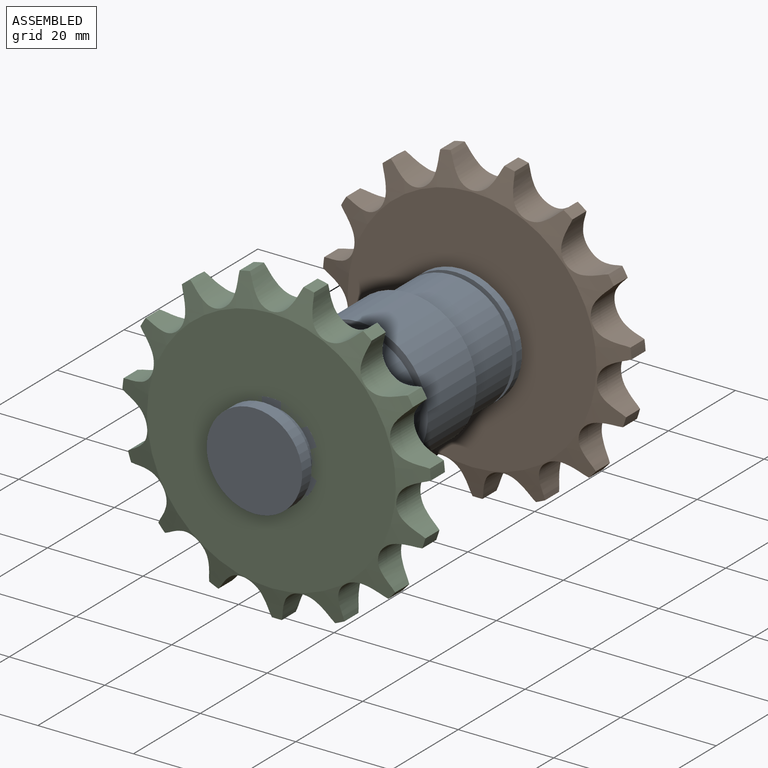
[diagram: assembled view]
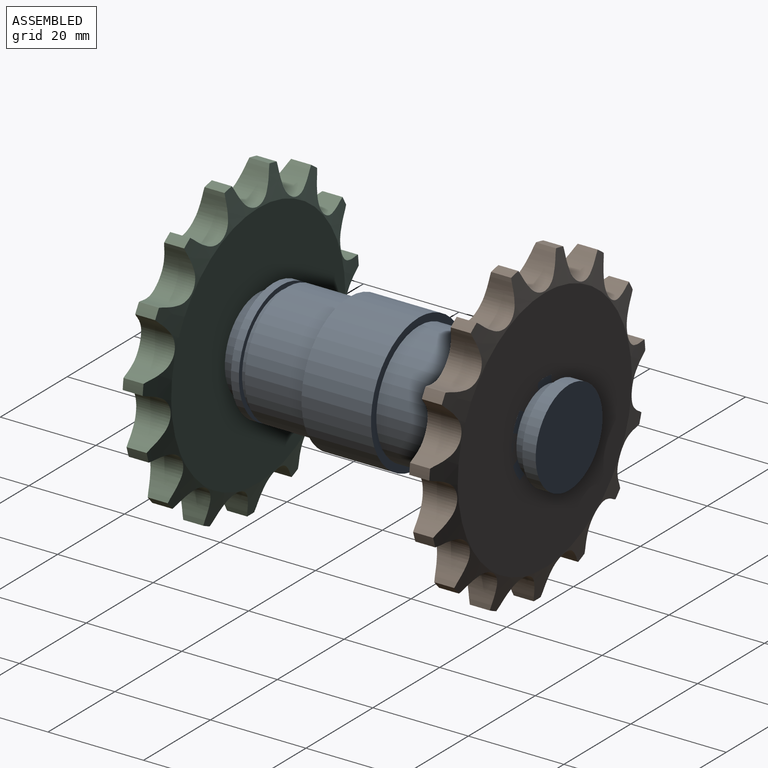
[diagram: assembled view, second angle]
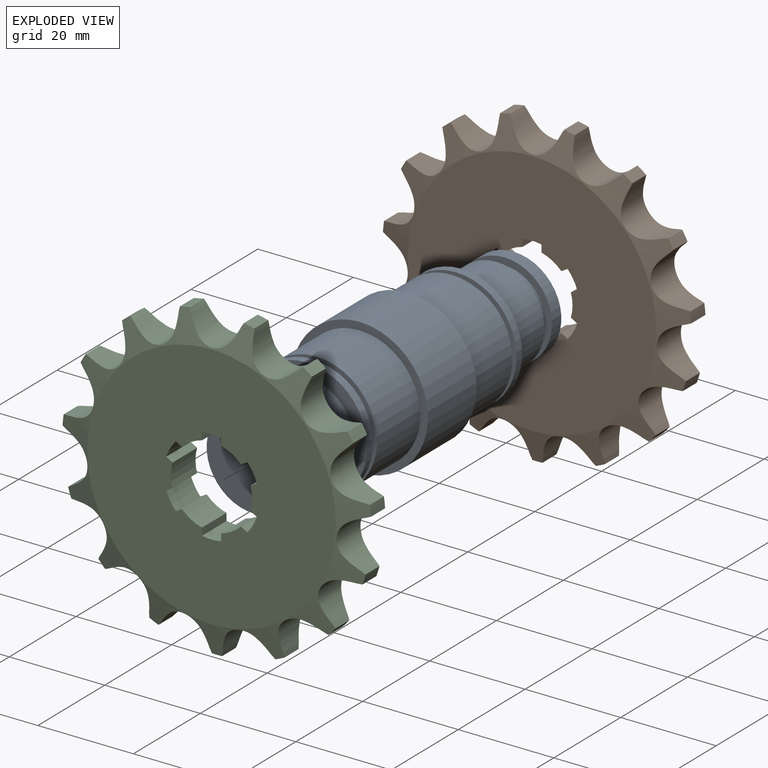
[diagram: exploded view]
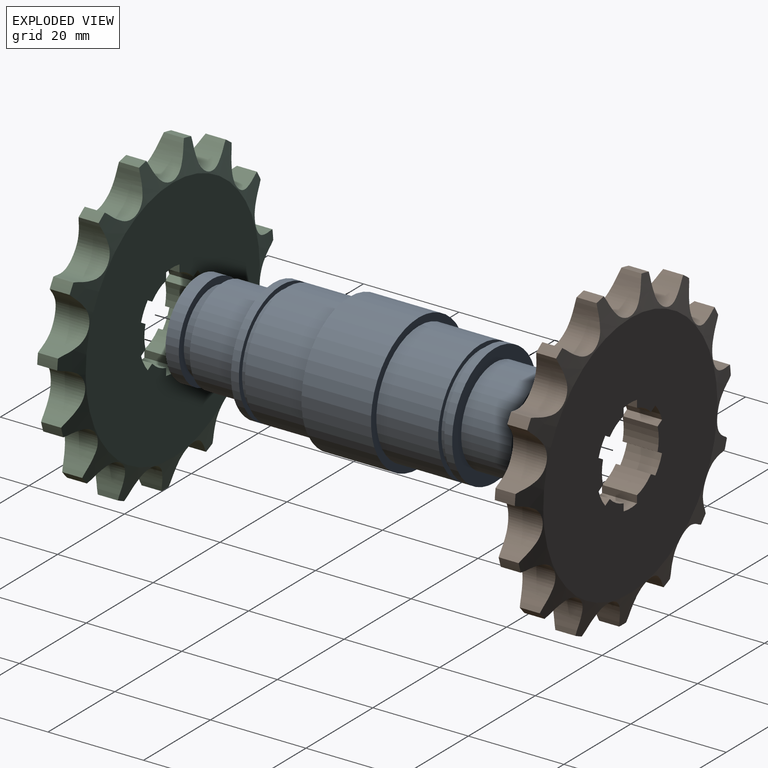
[diagram: exploded view, second angle]
ASSEMBLY  parts=3 mates=2
PART A: 27 faces, bbox 28.6x77.5x28.6 mm
  f0: plane 25.4x25.4mm, normal (0,-1,0), area 192.5mm2, adj f1,f26
  f1: cylinder r=10mm len=20mm, axis (0,1,0), area 660.7mm2, adj f0,f2
  f2: plane 20x20mm, normal (0,-1,0), area 87.2mm2, adj f1,f3
  f3: cylinder r=8.5mm len=17mm, axis (0,1,0), area 122.1mm2, adj f2,f4
  f4: plane 20x20mm, normal (0,1,0), area 87.2mm2, adj f3,f5
  f5: cylinder r=10mm len=20mm, axis (0,1,0), area 175.6mm2, adj f4,f6
  f6: plane 20x20mm, normal (0,-1,0), area 314.2mm2, adj f5
  f7: plane 20x20mm, normal (0,1,0), area 314.2mm2, adj f8
  f8: cylinder r=10mm len=20mm, axis (0,1,0), area 175.6mm2, adj f7,f9
  f9: plane 20x20mm, normal (0,-1,0), area 87.2mm2, adj f8,f10
  f10: cylinder r=8.5mm len=17mm, axis (0,1,0), area 122.1mm2, adj f9,f11
  f11: plane 20x20mm, normal (0,1,0), area 87.2mm2, adj f10,f12
  f12: cylinder r=10mm len=20mm, axis (0,1,0), area 660.7mm2, adj f11,f13
  f13: plane 25.4x25.4mm, normal (0,1,0), area 192.5mm2, adj f12,f14
  f14: cylinder r=12.7mm len=25.4mm, axis (0,1,0), area 131.7mm2, adj f13,f15
  f15: plane 25.4x25.4mm, normal (0,-1,0), area 74.1mm2, adj f14,f16
  f16: cylinder r=11.73mm len=23.47mm, axis (0,1,0), area 93.6mm2, adj f15,f17
  f17: plane 25.4x25.4mm, normal (0,1,0), area 74.1mm2, adj f16,f18
  f18: cylinder r=12.7mm len=25.4mm, axis (0,1,0), area 1033.7mm2, adj f17,f19
  f19: plane 28.58x28.58mm, normal (0,1,0), area 134.6mm2, adj f18,f20
  f20: cylinder r=14.29mm len=28.58mm, axis (0,1,0), area 1306.9mm2, adj f19,f21
  f21: plane 28.58x28.58mm, normal (0,-1,0), area 134.6mm2, adj f20,f22
  f22: cylinder r=12.7mm len=25.4mm, axis (0,1,0), area 1033.7mm2, adj f21,f23
  f23: plane 25.4x25.4mm, normal (0,-1,0), area 74.1mm2, adj f22,f24
  f24: cylinder r=11.73mm len=23.47mm, axis (0,1,0), area 93.6mm2, adj f23,f25
  f25: plane 25.4x25.4mm, normal (0,1,0), area 74.1mm2, adj f24,f26
  f26: cylinder r=12.7mm len=25.4mm, axis (0,1,0), area 131.7mm2, adj f0,f25
PART B: 148 faces, bbox 64.8x7.3x64.8 mm
  f0: plane 52.07x52.07mm, normal (0,-1,0), area 1866.2mm2, adj f1,f2,f3,f4,f5,f6,f23,f130
  f1: cylinder r=8.5mm len=7.34mm, axis (0,1,0), area 35.7mm2, adj f0,f7,f131,f145
  f2: cylinder r=8.5mm len=7.34mm, axis (0,1,0), area 35.7mm2, adj f0,f7,f144,f147
  f3: cylinder r=8.5mm len=7.34mm, axis (0,1,0), area 35.7mm2, adj f0,f7,f141,f142
  f4: cylinder r=8.5mm len=7.34mm, axis (0,1,0), area 35.7mm2, adj f0,f7,f138,f139
  f5: cylinder r=8.5mm len=7.34mm, axis (0,1,0), area 35.7mm2, adj f0,f7,f135,f136
  f6: cylinder r=8.5mm len=7.34mm, axis (0,1,0), area 35.7mm2, adj f0,f7,f130,f133
  f7: plane 52.07x52.07mm, normal (0,1,0), area 1866.2mm2, adj f1,f2,f3,f4,f5,f6,f24,f130
  f8: cylinder r=32.38mm len=4.19mm, axis (0,1,0), area 9mm2, adj f23,f24,f122,f129
  f9: cylinder r=32.38mm len=4.19mm, axis (0,1,0), area 8.9mm2, adj f23,f24,f115,f116
  f10: cylinder r=32.38mm len=4.19mm, axis (0,1,0), area 8.8mm2, adj f23,f24,f108,f109
  f11: cylinder r=32.38mm len=4.19mm, axis (0,1,0), area 8.8mm2, adj f23,f24,f101,f102
  f12: cylinder r=32.38mm len=4.19mm, axis (0,1,0), area 8.8mm2, adj f23,f24,f94,f95
  f13: cylinder r=32.38mm len=4.19mm, axis (0,1,0), area 8.9mm2, adj f23,f24,f87,f88
  f14: cylinder r=32.38mm len=4.19mm, axis (0,1,0), area 9mm2, adj f23,f24,f80,f81
  f15: cylinder r=32.38mm len=4.19mm, axis (0,1,0), area 9.1mm2, adj f23,f24,f73,f74
  f16: cylinder r=32.38mm len=4.19mm, axis (0,1,0), area 9.2mm2, adj f23,f24,f66,f67
  f17: cylinder r=32.38mm len=4.19mm, axis (0,1,0), area 9.3mm2, adj f23,f24,f59,f60
  f18: cylinder r=32.38mm len=4.19mm, axis (0,1,0), area 9.3mm2, adj f23,f24,f52,f53
  f19: cylinder r=32.38mm len=4.19mm, axis (0,1,0), area 9.3mm2, adj f23,f24,f45,f46
  f20: cylinder r=32.38mm len=4.19mm, axis (0,1,0), area 9.3mm2, adj f23,f24,f38,f39
  f21: cylinder r=32.38mm len=4.19mm, axis (0,1,0), area 9.2mm2, adj f23,f24,f31,f32
  f22: cylinder r=32.38mm len=4.19mm, axis (0,1,0), area 9.1mm2, adj f23,f24,f25,f123
  f23: cone r=32.38mm half-angle=76.1deg, axis (0,1,0), area 449.7mm2, adj f0,f8,f9,f10,f11,f12,f13,f14
  f24: cone r=26.04mm half-angle=76.1deg, axis (0,-1,0), area 449.7mm2, adj f7,f8,f9,f10,f11,f12,f13,f14
  f25: cylinder r=7.1mm len=4.64mm, axis (0,-1,0), area 4.2mm2, adj f22,f23,f24,f26
  f26: plane 5.09x0.91mm, normal (0.3,0,0.95), area 4.6mm2, adj f23,f24,f25,f27
  f27: cylinder r=11.12mm len=6.34mm, axis (0,-1,0), area 15.8mm2, adj f23,f24,f26,f28
  f28: cylinder r=4.31mm len=7.23mm, axis (0,-1,0), area 53.1mm2, adj f23,f24,f27,f29
  f29: cylinder r=11.12mm len=6.33mm, axis (0,-1,0), area 15.8mm2, adj f23,f24,f28,f30
  f30: plane 5.08x0.88mm, normal (-0.92,0,-0.4), area 4.6mm2, adj f23,f24,f29,f31
  f31: cylinder r=7.1mm len=4.62mm, axis (0,-1,0), area 4mm2, adj f21,f23,f24,f30
  f32: cylinder r=7.1mm len=4.62mm, axis (0,-1,0), area 4mm2, adj f21,f23,f24,f33
  f33: plane 5.08x0.72mm, normal (0.66,0,0.75), area 4.6mm2, adj f23,f24,f32,f34
  f34: cylinder r=11.12mm len=6.32mm, axis (0,-1,0), area 15.8mm2, adj f23,f24,f33,f35
  f35: cylinder r=4.31mm len=7.21mm, axis (0,-1,0), area 53mm2, adj f23,f24,f34,f36
  f36: cylinder r=11.12mm len=6.32mm, axis (0,-1,0), area 15.8mm2, adj f23,f24,f35,f37
  f37: plane 5.07x0.95mm, normal (-1,0,0.01), area 4.6mm2, adj f23,f24,f36,f38
  f38: cylinder r=7.1mm len=4.61mm, axis (0,-1,0), area 3.9mm2, adj f20,f23,f24,f37
  f39: cylinder r=7.1mm len=4.61mm, axis (0,-1,0), area 3.9mm2, adj f20,f23,f24,f40
  f40: plane 5.06x0.87mm, normal (0.91,0,0.42), area 4.6mm2, adj f23,f24,f39,f41
  f41: cylinder r=11.12mm len=6.31mm, axis (0,-1,0), area 15.7mm2, adj f23,f24,f40,f42
  f42: cylinder r=4.31mm len=7.2mm, axis (0,-1,0), area 52.9mm2, adj f23,f24,f41,f43
  f43: cylinder r=11.12mm len=6.31mm, axis (0,-1,0), area 15.7mm2, adj f23,f24,f42,f44
  f44: plane 5.06x0.87mm, normal (-0.91,0,0.42), area 4.6mm2, adj f23,f24,f43,f45
  f45: cylinder r=7.1mm len=4.6mm, axis (0,-1,0), area 3.8mm2, adj f19,f23,f24,f44
  f46: cylinder r=7.1mm len=4.6mm, axis (0,-1,0), area 3.8mm2, adj f19,f23,f24,f47
  f47: plane 5.06x0.95mm, normal (1,0,0.01), area 4.6mm2, adj f23,f24,f46,f48
  f48: cylinder r=11.12mm len=6.31mm, axis (0,-1,0), area 15.7mm2, adj f23,f24,f47,f49
  f49: cylinder r=4.31mm len=7.2mm, axis (0,-1,0), area 52.9mm2, adj f23,f24,f48,f50
  f50: cylinder r=11.12mm len=6.31mm, axis (0,-1,0), area 15.7mm2, adj f23,f24,f49,f51
  f51: plane 5.06x0.72mm, normal (-0.66,0,0.75), area 4.6mm2, adj f23,f24,f50,f52
  f52: cylinder r=7.1mm len=4.6mm, axis (0,-1,0), area 3.8mm2, adj f18,f23,f24,f51
  f53: cylinder r=7.1mm len=4.6mm, axis (0,-1,0), area 3.8mm2, adj f18,f23,f24,f54
  f54: plane 5.06x0.88mm, normal (0.92,0,-0.4), area 4.6mm2, adj f23,f24,f53,f55
  f55: cylinder r=11.12mm len=6.31mm, axis (0,-1,0), area 15.7mm2, adj f23,f24,f54,f56
  f56: cylinder r=4.31mm len=7.2mm, axis (0,-1,0), area 52.9mm2, adj f23,f24,f55,f57
  f57: cylinder r=11.12mm len=6.31mm, axis (0,-1,0), area 15.7mm2, adj f23,f24,f56,f58
  f58: plane 5.07x0.91mm, normal (-0.3,0,0.95), area 4.6mm2, adj f23,f24,f57,f59
  f59: cylinder r=7.1mm len=4.61mm, axis (0,-1,0), area 3.9mm2, adj f17,f23,f24,f58
  f60: cylinder r=7.1mm len=4.61mm, axis (0,-1,0), area 3.9mm2, adj f17,f23,f24,f61
  f61: plane 5.07x0.7mm, normal (0.68,0,-0.73), area 4.6mm2, adj f23,f24,f60,f62
  f62: cylinder r=11.12mm len=6.32mm, axis (0,-1,0), area 15.8mm2, adj f23,f24,f61,f63
  f63: cylinder r=4.31mm len=7.22mm, axis (0,-1,0), area 53mm2, adj f23,f24,f62,f64
  f64: cylinder r=11.12mm len=6.33mm, axis (0,-1,0), area 15.8mm2, adj f23,f24,f63,f65
  f65: plane 5.08x0.95mm, normal (0.12,0,0.99), area 4.6mm2, adj f23,f24,f64,f66
  f66: cylinder r=7.1mm len=4.62mm, axis (0,-1,0), area 4.1mm2, adj f16,f23,f24,f65
  f67: cylinder r=7.1mm len=4.63mm, axis (0,-1,0), area 4.1mm2, adj f16,f23,f24,f68
  f68: plane 5.08x0.9mm, normal (0.32,0,-0.95), area 4.6mm2, adj f23,f24,f67,f69
  f69: cylinder r=11.12mm len=6.33mm, axis (0,-1,0), area 15.8mm2, adj f23,f24,f68,f70
  f70: cylinder r=4.31mm len=7.23mm, axis (0,-1,0), area 53.2mm2, adj f23,f24,f69,f71
  f71: cylinder r=11.12mm len=6.35mm, axis (0,-1,0), area 15.8mm2, adj f23,f24,f70,f72
  f72: plane 5.1x0.82mm, normal (0.51,0,0.86), area 4.6mm2, adj f23,f24,f71,f73
  f73: cylinder r=7.1mm len=4.64mm, axis (0,-1,0), area 4.2mm2, adj f15,f23,f24,f72
  f74: cylinder r=7.1mm len=4.64mm, axis (0,-1,0), area 4.3mm2, adj f15,f23,f24,f75
  f75: plane 5.1x0.95mm, normal (-0.09,0,-1), area 4.6mm2, adj f23,f24,f74,f76
  f76: cylinder r=11.12mm len=6.35mm, axis (0,-1,0), area 15.9mm2, adj f23,f24,f75,f77
  f77: cylinder r=4.31mm len=7.25mm, axis (0,-1,0), area 53.3mm2, adj f23,f24,f76,f78
  f78: cylinder r=11.12mm len=6.36mm, axis (0,-1,0), area 15.9mm2, adj f23,f24,f77,f79
  f79: plane 5.12x0.78mm, normal (0.82,0,0.58), area 4.6mm2, adj f23,f24,f78,f80
  f80: cylinder r=7.1mm len=4.66mm, axis (0,-1,0), area 4.4mm2, adj f14,f23,f24,f79
  f81: cylinder r=7.1mm len=4.66mm, axis (0,-1,0), area 4.5mm2, adj f14,f23,f24,f82
  f82: plane 5.12x0.83mm, normal (-0.49,0,-0.87), area 4.6mm2, adj f23,f24,f81,f83
  f83: cylinder r=11.12mm len=6.37mm, axis (0,-1,0), area 15.9mm2, adj f23,f24,f82,f84
  f84: cylinder r=4.31mm len=7.27mm, axis (0,-1,0), area 53.5mm2, adj f23,f24,f83,f85
  f85: cylinder r=11.12mm len=6.38mm, axis (0,-1,0), area 15.9mm2, adj f23,f24,f84,f86
  f86: plane 5.13x0.93mm, normal (0.98,0,0.2), area 4.7mm2, adj f23,f24,f85,f87
  f87: cylinder r=7.1mm len=4.68mm, axis (0,-1,0), area 4.6mm2, adj f13,f23,f24,f86
  f88: cylinder r=7.1mm len=4.68mm, axis (0,-1,0), area 4.6mm2, adj f13,f23,f24,f89
  f89: plane 5.14x0.76mm, normal (-0.8,0,-0.6), area 4.7mm2, adj f23,f24,f88,f90
  f90: cylinder r=11.12mm len=6.39mm, axis (0,-1,0), area 16mm2, adj f23,f24,f89,f91
  f91: cylinder r=4.31mm len=7.28mm, axis (0,-1,0), area 53.6mm2, adj f23,f24,f90,f92
  f92: cylinder r=11.12mm len=6.39mm, axis (0,-1,0), area 16mm2, adj f23,f24,f91,f93
  f93: plane 5.14x0.93mm, normal (0.98,0,-0.22), area 4.7mm2, adj f23,f24,f92,f94
  f94: cylinder r=7.1mm len=4.69mm, axis (0,-1,0), area 4.7mm2, adj f12,f23,f24,f93
  f95: cylinder r=7.1mm len=4.69mm, axis (0,-1,0), area 4.7mm2, adj f12,f23,f24,f96
  f96: plane 5.15x0.93mm, normal (-0.98,0,-0.22), area 4.7mm2, adj f23,f24,f95,f97
  f97: cylinder r=11.12mm len=6.4mm, axis (0,-1,0), area 16mm2, adj f23,f24,f96,f98
  f98: cylinder r=4.31mm len=7.29mm, axis (0,-1,0), area 53.6mm2, adj f23,f24,f97,f99
  f99: cylinder r=11.12mm len=6.4mm, axis (0,-1,0), area 16mm2, adj f23,f24,f98,f100
  f100: plane 5.15x0.76mm, normal (0.8,0,-0.6), area 4.7mm2, adj f23,f24,f99,f101
  f101: cylinder r=7.1mm len=4.69mm, axis (0,-1,0), area 4.8mm2, adj f11,f23,f24,f100
  f102: cylinder r=7.1mm len=4.69mm, axis (0,-1,0), area 4.8mm2, adj f11,f23,f24,f103
  f103: plane 5.15x0.93mm, normal (-0.98,0,0.2), area 4.7mm2, adj f23,f24,f102,f104
  f104: cylinder r=11.12mm len=6.4mm, axis (0,-1,0), area 16mm2, adj f23,f24,f103,f105
  f105: cylinder r=4.31mm len=7.29mm, axis (0,-1,0), area 53.6mm2, adj f23,f24,f104,f106
  f106: cylinder r=11.12mm len=6.4mm, axis (0,-1,0), area 16mm2, adj f23,f24,f105,f107
  f107: plane 5.15x0.83mm, normal (0.49,0,-0.87), area 4.7mm2, adj f23,f24,f106,f108
  f108: cylinder r=7.1mm len=4.69mm, axis (0,-1,0), area 4.7mm2, adj f10,f23,f24,f107
  f109: cylinder r=7.1mm len=4.69mm, axis (0,-1,0), area 4.7mm2, adj f10,f23,f24,f110
  f110: plane 5.14x0.78mm, normal (-0.82,0,0.58), area 4.7mm2, adj f23,f24,f109,f111
  f111: cylinder r=11.12mm len=6.39mm, axis (0,-1,0), area 16mm2, adj f23,f24,f110,f112
  f112: cylinder r=4.31mm len=7.28mm, axis (0,-1,0), area 53.5mm2, adj f23,f24,f111,f113
  f113: cylinder r=11.12mm len=6.38mm, axis (0,-1,0), area 15.9mm2, adj f23,f24,f112,f114
  f114: plane 5.13x0.95mm, normal (0.09,0,-1), area 4.7mm2, adj f23,f24,f113,f115
  f115: cylinder r=7.1mm len=4.68mm, axis (0,-1,0), area 4.6mm2, adj f9,f23,f24,f114
  f116: cylinder r=7.1mm len=4.67mm, axis (0,-1,0), area 4.6mm2, adj f9,f23,f24,f117
  f117: plane 5.13x0.82mm, normal (-0.51,0,0.86), area 4.6mm2, adj f23,f24,f116,f118
  f118: cylinder r=11.12mm len=6.38mm, axis (0,-1,0), area 15.9mm2, adj f23,f24,f117,f119
  f119: cylinder r=4.31mm len=7.27mm, axis (0,-1,0), area 53.4mm2, adj f23,f24,f118,f120
  f120: cylinder r=11.12mm len=6.37mm, axis (0,-1,0), area 15.9mm2, adj f23,f24,f119,f121
  f121: plane 5.12x0.9mm, normal (-0.32,0,-0.95), area 4.6mm2, adj f23,f24,f120,f122
  f122: cylinder r=7.1mm len=4.66mm, axis (0,-1,0), area 4.4mm2, adj f8,f23,f24,f121
  f123: cylinder r=7.1mm len=4.64mm, axis (0,-1,0), area 4.2mm2, adj f22,f23,f24,f124
  f124: plane 5.1x0.7mm, normal (-0.68,0,-0.73), area 4.6mm2, adj f23,f24,f123,f125
  f125: cylinder r=11.12mm len=6.35mm, axis (0,-1,0), area 15.8mm2, adj f23,f24,f124,f126
  f126: cylinder r=4.31mm len=7.25mm, axis (0,-1,0), area 53.3mm2, adj f23,f24,f125,f127
  f127: cylinder r=11.12mm len=6.36mm, axis (0,-1,0), area 15.9mm2, adj f23,f24,f126,f128
  f128: plane 5.11x0.95mm, normal (-0.12,0,0.99), area 4.6mm2, adj f23,f24,f127,f129
  f129: cylinder r=7.1mm len=4.66mm, axis (0,-1,0), area 4.4mm2, adj f8,f23,f24,f128
  f130: plane 7.34x1.33mm, normal (-0.5,0,-0.87), area 11.3mm2, adj f0,f6,f7,f132
  f131: plane 7.34x1.33mm, normal (0.5,0,0.87), area 11.3mm2, adj f0,f1,f7,f132
  f132: cylinder r=10mm len=7.34mm, axis (0,-1,0), area 29.6mm2, adj f0,f7,f130,f131
  f133: plane 7.34x1.54mm, normal (1,0,0), area 11.3mm2, adj f0,f6,f7,f134
  f134: cylinder r=10mm len=7.34mm, axis (0,-1,0), area 29.6mm2, adj f0,f7,f133,f135
  f135: plane 7.34x1.54mm, normal (-1,0,0), area 11.3mm2, adj f0,f5,f7,f134
  f136: plane 7.34x1.33mm, normal (0.5,0,-0.87), area 11.3mm2, adj f0,f5,f7,f137
  f137: cylinder r=10mm len=7.34mm, axis (0,-1,0), area 29.6mm2, adj f0,f7,f136,f138
  f138: plane 7.34x1.33mm, normal (-0.5,0,0.87), area 11.3mm2, adj f0,f4,f7,f137
  f139: plane 7.34x1.33mm, normal (-0.5,0,-0.87), area 11.3mm2, adj f0,f4,f7,f140
  f140: cylinder r=10mm len=7.34mm, axis (0,-1,0), area 29.6mm2, adj f0,f7,f139,f141
  f141: plane 7.34x1.33mm, normal (0.5,0,0.87), area 11.3mm2, adj f0,f3,f7,f140
  f142: plane 7.34x1.54mm, normal (-1,0,0), area 11.3mm2, adj f0,f3,f7,f143
  f143: cylinder r=10mm len=7.34mm, axis (0,-1,0), area 29.6mm2, adj f0,f7,f142,f144
  f144: plane 7.34x1.54mm, normal (1,0,0), area 11.3mm2, adj f0,f2,f7,f143
  f145: plane 7.34x1.33mm, normal (0.5,0,-0.87), area 11.3mm2, adj f0,f1,f7,f146
  f146: cylinder r=10mm len=7.34mm, axis (0,-1,0), area 29.6mm2, adj f0,f7,f145,f147
  f147: plane 7.34x1.33mm, normal (-0.5,0,0.87), area 11.3mm2, adj f0,f2,f7,f146
PART C: same geometry as B
PLACE A t=(10.89,-12.04,18.48)mm
PLACE B t=(10.89,14.28,18.48)mm
PLACE C t=(10.89,-45.71,18.48)mm
MATE slider B.f132 <-> A.f1  axis (0,1,0) through (10.89,21.63,18.48)mm
MATE slider C.f1 <-> A.f1  axis (0,-1,0) through (10.89,-45.71,18.48)mm
